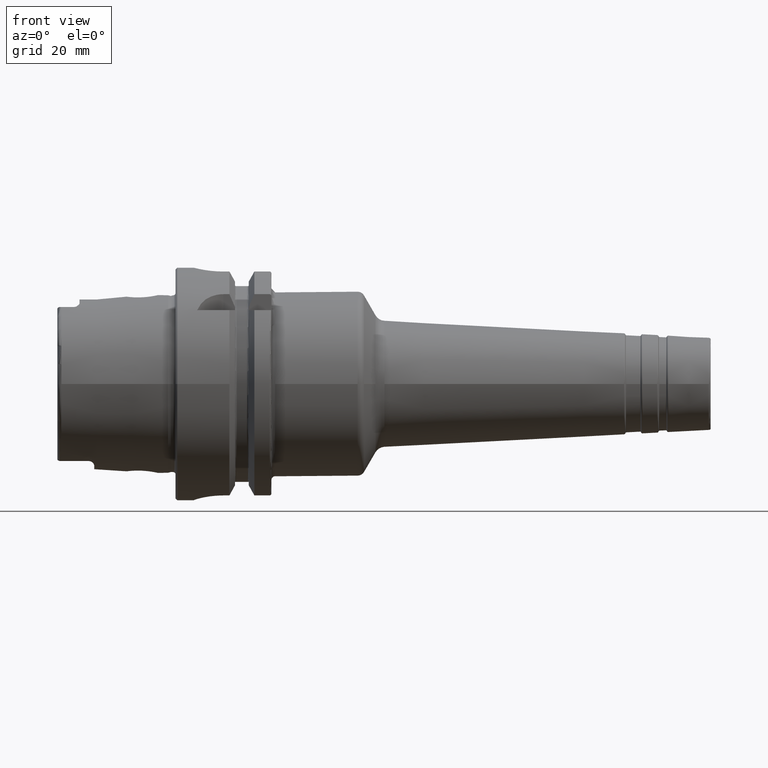
[diagram: clean part render]
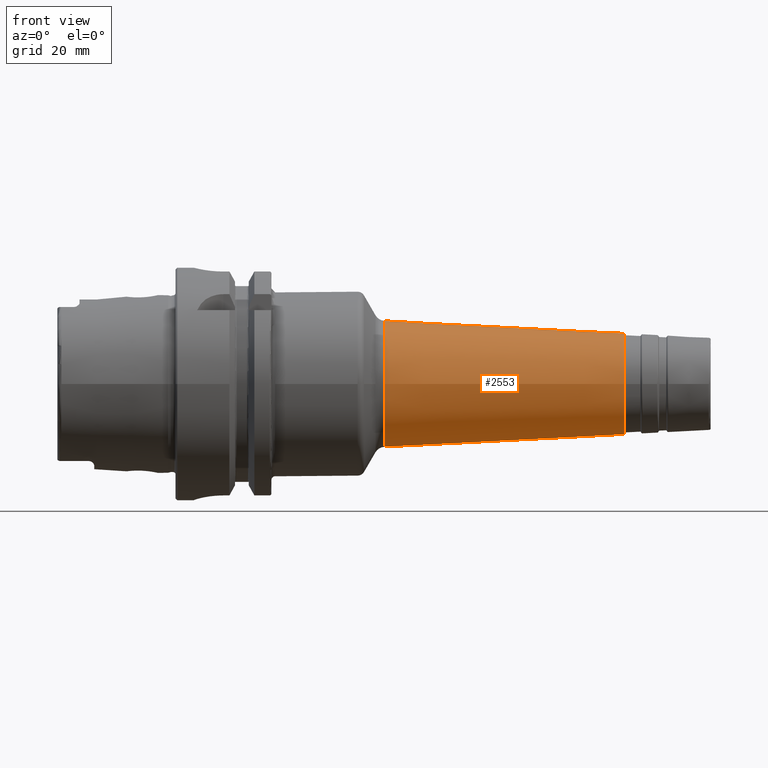
[diagram: same view with one face highlighted and labeled with its STEP entity id]
A machine part, front view. The second image highlights one B-rep face of the part: STEP entity #2553.
In plain terms, the highlighted conical surface has half-angle 3 deg.
Its self-contained STEP definition (entity closure, byte-faithful):
#98=CONICAL_SURFACE('',#2731,15.4675128445667,0.0523598775598294);
#184=LINE('',#3999,#301);
#301=VECTOR('',#3144,15.4675128445667);
#447=FACE_OUTER_BOUND('',#584,.T.);
#584=EDGE_LOOP('',(#1712,#1713,#1714,#1715,#1716,#1717,#1718,#1719));
#739=CIRCLE('',#2722,17.1314518182593);
#740=CIRCLE('',#2723,17.1314518182593);
#741=CIRCLE('',#2724,17.1314518182593);
#747=CIRCLE('',#2732,13.7304120250298);
#748=CIRCLE('',#2733,13.7304120250298);
#749=CIRCLE('',#2734,13.7304120250298);
#972=VERTEX_POINT('',#3975);
#973=VERTEX_POINT('',#3977);
#974=VERTEX_POINT('',#3979);
#979=VERTEX_POINT('',#3994);
#980=VERTEX_POINT('',#3995);
#981=VERTEX_POINT('',#3997);
#1268=EDGE_CURVE('',#972,#973,#739,.T.);
#1269=EDGE_CURVE('',#973,#974,#740,.T.);
#1270=EDGE_CURVE('',#974,#972,#741,.T.);
#1277=EDGE_CURVE('',#979,#980,#747,.T.);
#1278=EDGE_CURVE('',#981,#979,#748,.T.);
#1279=EDGE_CURVE('',#981,#974,#184,.T.);
#1280=EDGE_CURVE('',#980,#981,#749,.T.);
#1712=ORIENTED_EDGE('',*,*,#1277,.F.);
#1713=ORIENTED_EDGE('',*,*,#1278,.F.);
#1714=ORIENTED_EDGE('',*,*,#1279,.T.);
#1715=ORIENTED_EDGE('',*,*,#1269,.F.);
#1716=ORIENTED_EDGE('',*,*,#1268,.F.);
#1717=ORIENTED_EDGE('',*,*,#1270,.F.);
#1718=ORIENTED_EDGE('',*,*,#1279,.F.);
#1719=ORIENTED_EDGE('',*,*,#1280,.F.);
#2553=ADVANCED_FACE('',(#447),#98,.T.);
#2722=AXIS2_PLACEMENT_3D('',#3978,#3119,#3120);
#2723=AXIS2_PLACEMENT_3D('',#3980,#3121,#3122);
#2724=AXIS2_PLACEMENT_3D('',#3981,#3123,#3124);
#2731=AXIS2_PLACEMENT_3D('',#3993,#3138,#3139);
#2732=AXIS2_PLACEMENT_3D('',#3996,#3140,#3141);
#2733=AXIS2_PLACEMENT_3D('',#3998,#3142,#3143);
#2734=AXIS2_PLACEMENT_3D('',#4000,#3145,#3146);
#3119=DIRECTION('center_axis',(-1.,0.,0.));
#3120=DIRECTION('ref_axis',(0.,-1.,3.06161699786838E-17));
#3121=DIRECTION('center_axis',(-1.,0.,0.));
#3122=DIRECTION('ref_axis',(0.,-1.,3.06161699786838E-17));
#3123=DIRECTION('center_axis',(-1.,0.,0.));
#3124=DIRECTION('ref_axis',(0.,-1.,3.06161699786838E-17));
#3138=DIRECTION('center_axis',(-1.,0.,0.));
#3139=DIRECTION('ref_axis',(0.,1.,0.));
#3140=DIRECTION('center_axis',(1.,0.,0.));
#3141=DIRECTION('ref_axis',(0.,-1.,3.06161699786838E-17));
#3142=DIRECTION('center_axis',(1.,0.,0.));
#3143=DIRECTION('ref_axis',(0.,-1.,3.06161699786838E-17));
#3144=DIRECTION('',(-0.998629534754574,-0.0523359562429433,-6.40930612932365E-18));
#3145=DIRECTION('center_axis',(1.,0.,0.));
#3146=DIRECTION('ref_axis',(0.,-1.,3.06161699786838E-17));
#3975=CARTESIAN_POINT('',(56.6266347931668,-2.09799776339783E-15,17.1314518182593));
#3977=CARTESIAN_POINT('',(56.6266347931668,17.1314518182593,-5.24499440849458E-15));
#3978=CARTESIAN_POINT('Origin',(56.6266347931668,0.,-2.62249720424729E-15));
#3979=CARTESIAN_POINT('',(56.6266347931668,-17.1314518182593,-2.09799776339783E-15));
#3980=CARTESIAN_POINT('Origin',(56.6266347931668,0.,-2.62249720424729E-15));
#3981=CARTESIAN_POINT('Origin',(56.6266347931668,0.,-2.62249720424729E-15));
#3993=CARTESIAN_POINT('Origin',(88.3764817902328,0.,0.));
#3994=CARTESIAN_POINT('',(121.522339968181,13.7304120250298,-8.40745256871355E-16));
#3995=CARTESIAN_POINT('',(121.522339968181,-1.68149051374271E-15,13.7304120250298));
#3996=CARTESIAN_POINT('Origin',(121.522339968181,0.,-2.10186314217839E-15));
#3997=CARTESIAN_POINT('',(121.522339968181,-13.7304120250298,-1.68149051374271E-15));
#3998=CARTESIAN_POINT('Origin',(121.522339968181,0.,-2.10186314217839E-15));
#3999=CARTESIAN_POINT('',(88.3764817902328,-15.4675128445667,-1.89422400958692E-15));
#4000=CARTESIAN_POINT('Origin',(121.522339968181,0.,-2.10186314217839E-15));